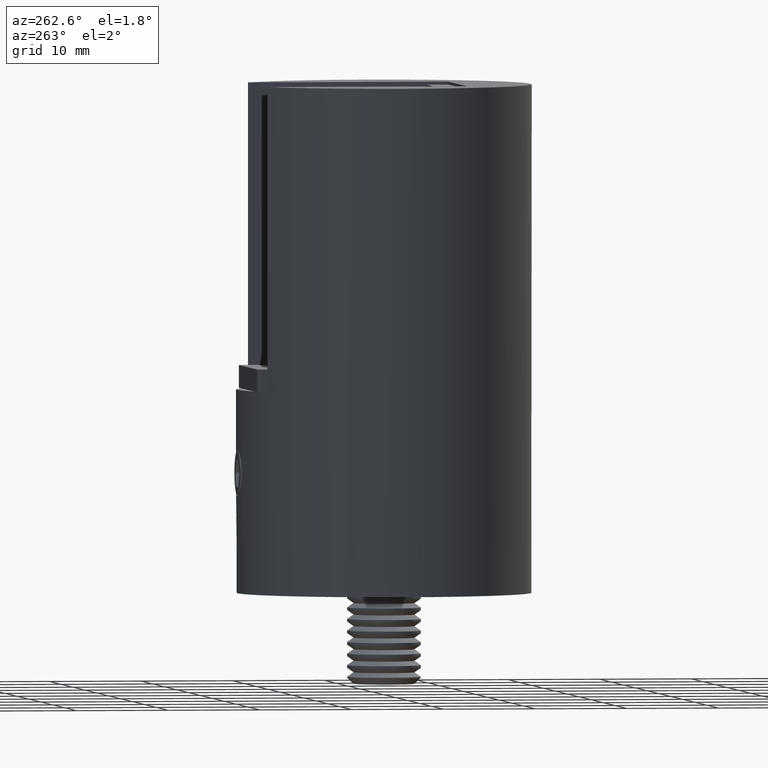
[diagram: clean part render]
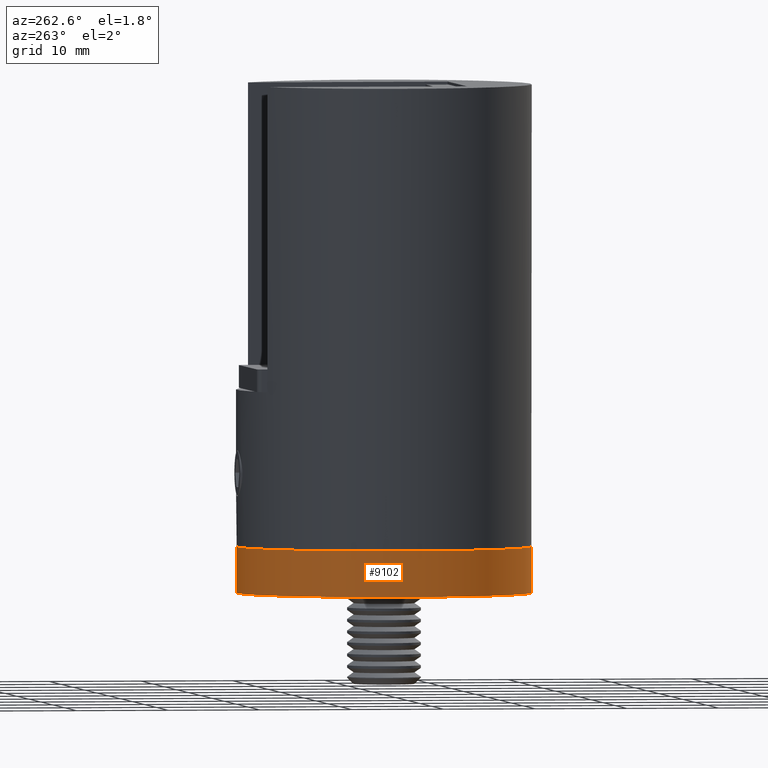
[diagram: same view with one face highlighted and labeled with its STEP entity id]
A machine part, auxiliary view. The second image highlights one B-rep face of the part: STEP entity #9102.
In plain terms, the highlighted cylindrical surface (bore or boss wall) has radius 16 mm, axis along (0, -0, -1).
Its self-contained STEP definition (entity closure, byte-faithful):
#1063 = DIRECTION ( 'NONE',  ( 0.000000000000000000, 0.000000000000000000, -1.000000000000000000 ) ) ;
#1336 = DIRECTION ( 'NONE',  ( -0.000000000000000000, -1.000000000000000000, -0.000000000000000000 ) ) ;
#2465 = EDGE_LOOP ( 'NONE', ( #3364 ) ) ;
#2794 = AXIS2_PLACEMENT_3D ( 'NONE', #16517, #15069, #20173 ) ;
#3100 = EDGE_CURVE ( 'NONE', #17081, #17081, #17457, .T. ) ;
#3364 = ORIENTED_EDGE ( 'NONE', *, *, #3100, .F. ) ;
#3683 = EDGE_LOOP ( 'NONE', ( #17617 ) ) ;
#3748 = FACE_OUTER_BOUND ( 'NONE', #3683, .T. ) ;
#4041 = CARTESIAN_POINT ( 'NONE',  ( 0.000000000000000000, 5.000000000000000000, 0.000000000000000000 ) ) ;
#4170 = CARTESIAN_POINT ( 'NONE',  ( 0.000000000000000000, 5.000000000000000000, -16.00000000000000000 ) ) ;
#4736 = VERTEX_POINT ( 'NONE', #4170 ) ;
#7023 = CARTESIAN_POINT ( 'NONE',  ( 0.000000000000000000, 0.000000000000000000, -16.00000000000000000 ) ) ;
#7196 = AXIS2_PLACEMENT_3D ( 'NONE', #4041, #8887, #1063 ) ;
#8887 = DIRECTION ( 'NONE',  ( -0.000000000000000000, -1.000000000000000000, -0.000000000000000000 ) ) ;
#9102 = ADVANCED_FACE ( 'NONE', ( #3748, #16100 ), #10442, .T. ) ;
#10442 = CYLINDRICAL_SURFACE ( 'NONE', #2794, 16.00000000000000000 ) ;
#12932 = CIRCLE ( 'NONE', #7196, 16.00000000000000000 ) ;
#13050 = AXIS2_PLACEMENT_3D ( 'NONE', #20294, #1336, #20218 ) ;
#14738 = EDGE_CURVE ( 'NONE', #4736, #4736, #12932, .T. ) ;
#15069 = DIRECTION ( 'NONE',  ( -0.000000000000000000, -1.000000000000000000, -0.000000000000000000 ) ) ;
#16100 = FACE_OUTER_BOUND ( 'NONE', #2465, .T. ) ;
#16517 = CARTESIAN_POINT ( 'NONE',  ( 0.000000000000000000, 0.000000000000000000, 0.000000000000000000 ) ) ;
#17081 = VERTEX_POINT ( 'NONE', #7023 ) ;
#17457 = CIRCLE ( 'NONE', #13050, 16.00000000000000000 ) ;
#17617 = ORIENTED_EDGE ( 'NONE', *, *, #14738, .T. ) ;
#20173 = DIRECTION ( 'NONE',  ( 0.000000000000000000, 0.000000000000000000, -1.000000000000000000 ) ) ;
#20218 = DIRECTION ( 'NONE',  ( 0.000000000000000000, 0.000000000000000000, -1.000000000000000000 ) ) ;
#20294 = CARTESIAN_POINT ( 'NONE',  ( 0.000000000000000000, 0.000000000000000000, 0.000000000000000000 ) ) ;